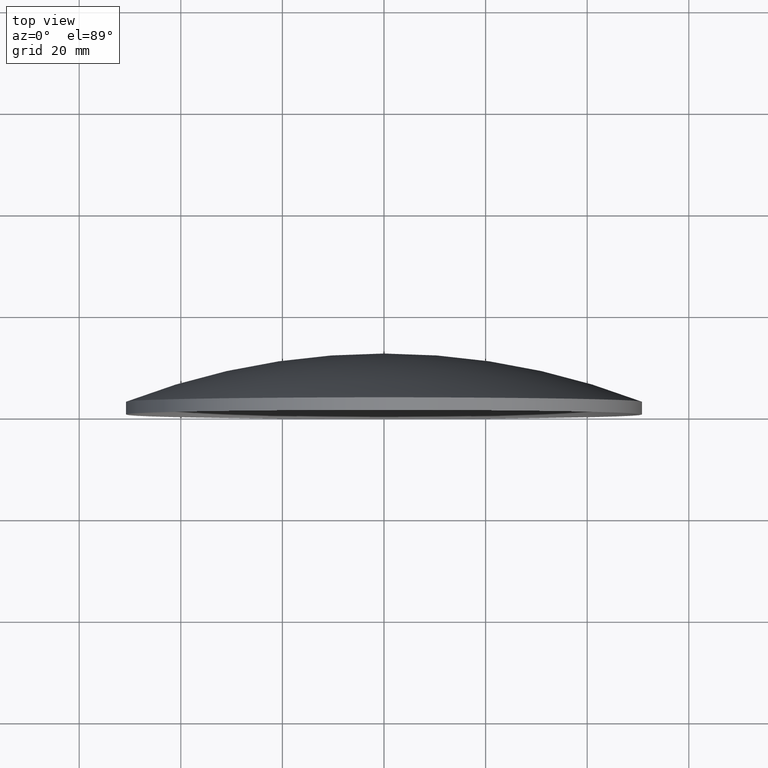
[diagram: clean part render]
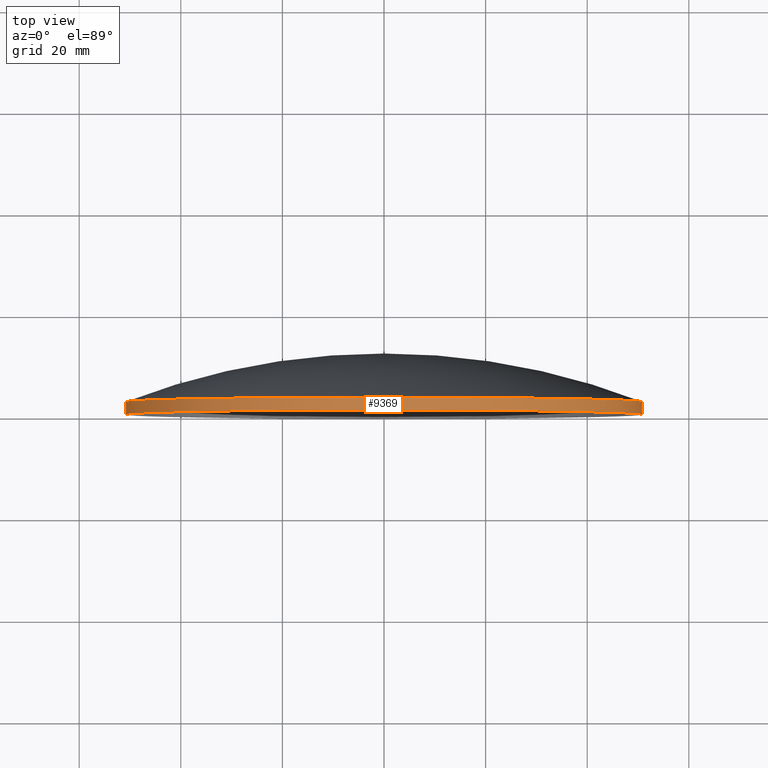
[diagram: same view with one face highlighted and labeled with its STEP entity id]
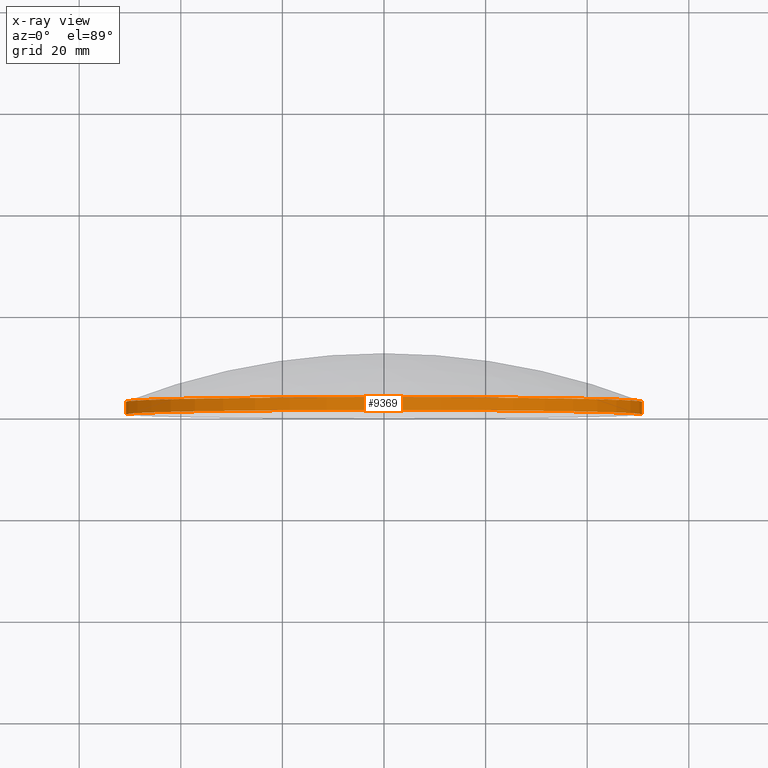
[diagram: x-ray of the same camera — body ghosted, the highlighted face saturated]
A machine part, top view. The second image highlights one B-rep face of the part: STEP entity #9369.
The next image is the same camera in x-ray: the body ghosted, the highlighted face saturated — about 0% of this face is hidden behind the body in this view.
In plain terms, the highlighted cylindrical surface (partial cylindrical patch) has radius 50.8 mm, axis along (-0, -1, -0).
Its self-contained STEP definition (entity closure, byte-faithful):
#121 = VERTEX_POINT ( 'NONE', #3357 ) ;
#214 = CYLINDRICAL_SURFACE ( 'NONE', #8313, 50.80000000000011100 ) ;
#569 = DIRECTION ( 'NONE',  ( -1.284146586159413000E-014, -1.000000000000000000, -0.0000000000000000000 ) ) ;
#585 = ORIENTED_EDGE ( 'NONE', *, *, #5362, .F. ) ;
#1185 = VECTOR ( 'NONE', #4198, 1000.000000000000000 ) ;
#1903 = DIRECTION ( 'NONE',  ( -1.284146586159413000E-014, -1.000000000000000000, -0.0000000000000000000 ) ) ;
#2291 = AXIS2_PLACEMENT_3D ( 'NONE', #3011, #3838, #10087 ) ;
#2403 = EDGE_LOOP ( 'NONE', ( #10694, #3513, #8296, #585 ) ) ;
#2747 = AXIS2_PLACEMENT_3D ( 'NONE', #11348, #569, #3275 ) ;
#3011 = CARTESIAN_POINT ( 'NONE',  ( -1.219939256851359600E-013, 6.539907504432562700E-013, 0.0000000000000000000 ) ) ;
#3275 = DIRECTION ( 'NONE',  ( 1.000000000000000000, -1.283968557022201400E-014, 0.0000000000000000000 ) ) ;
#3357 = CARTESIAN_POINT ( 'NONE',  ( 50.80000000000000400, 1.644284674272805100E-015, 0.0000000000000000000 ) ) ;
#3375 = CARTESIAN_POINT ( 'NONE',  ( -50.80000000000025300, 1.306337216212239800E-012, 6.221205739668571900E-015 ) ) ;
#3451 = CARTESIAN_POINT ( 'NONE',  ( -50.80000000000011100, 9.500000000000660800, 6.221205739668567900E-015 ) ) ;
#3513 = ORIENTED_EDGE ( 'NONE', *, *, #10383, .T. ) ;
#3609 = DIRECTION ( 'NONE',  ( 1.000000000000000000, -1.283968557022200900E-014, 0.0000000000000000000 ) ) ;
#3838 = DIRECTION ( 'NONE',  ( -1.284146586159413000E-014, -1.000000000000000000, -0.0000000000000000000 ) ) ;
#4129 = VERTEX_POINT ( 'NONE', #5902 ) ;
#4198 = DIRECTION ( 'NONE',  ( -1.284146586159413000E-014, -1.000000000000000000, -0.0000000000000000000 ) ) ;
#4852 = FACE_OUTER_BOUND ( 'NONE', #2403, .T. ) ;
#5362 = EDGE_CURVE ( 'NONE', #11613, #121, #10420, .T. ) ;
#5902 = CARTESIAN_POINT ( 'NONE',  ( -50.80000000000018200, 2.500000000001279000, 6.221205739668566400E-015 ) ) ;
#5981 = VERTEX_POINT ( 'NONE', #3375 ) ;
#6248 = EDGE_CURVE ( 'NONE', #121, #5981, #7481, .T. ) ;
#6958 = CIRCLE ( 'NONE', #2747, 50.80000000000009000 ) ;
#7481 = CIRCLE ( 'NONE', #2291, 50.80000000000013200 ) ;
#7634 = VECTOR ( 'NONE', #11369, 1000.000000000000000 ) ;
#8296 = ORIENTED_EDGE ( 'NONE', *, *, #6248, .F. ) ;
#8313 = AXIS2_PLACEMENT_3D ( 'NONE', #10845, #1903, #3609 ) ;
#8806 = EDGE_CURVE ( 'NONE', #11613, #4129, #6958, .T. ) ;
#8997 = CARTESIAN_POINT ( 'NONE',  ( 50.79999999999999700, 2.499999999999974200, 0.0000000000000000000 ) ) ;
#9369 = ADVANCED_FACE ( 'NONE', ( #4852 ), #214, .T. ) ;
#10087 = DIRECTION ( 'NONE',  ( 1.000000000000000000, -1.284146586159413000E-014, 0.0000000000000000000 ) ) ;
#10180 = CARTESIAN_POINT ( 'NONE',  ( 50.80000000000011100, 9.499999999999357000, 0.0000000000000000000 ) ) ;
#10383 = EDGE_CURVE ( 'NONE', #4129, #5981, #11558, .T. ) ;
#10420 = LINE ( 'NONE', #10180, #1185 ) ;
#10694 = ORIENTED_EDGE ( 'NONE', *, *, #8806, .T. ) ;
#10845 = CARTESIAN_POINT ( 'NONE',  ( 0.0000000000000000000, 9.500000000000008900, 0.0000000000000000000 ) ) ;
#11348 = CARTESIAN_POINT ( 'NONE',  ( -8.989026103115097500E-014, 2.500000000000626600, 0.0000000000000000000 ) ) ;
#11369 = DIRECTION ( 'NONE',  ( -1.284146586159413000E-014, -1.000000000000000000, -0.0000000000000000000 ) ) ;
#11558 = LINE ( 'NONE', #3451, #7634 ) ;
#11613 = VERTEX_POINT ( 'NONE', #8997 ) ;